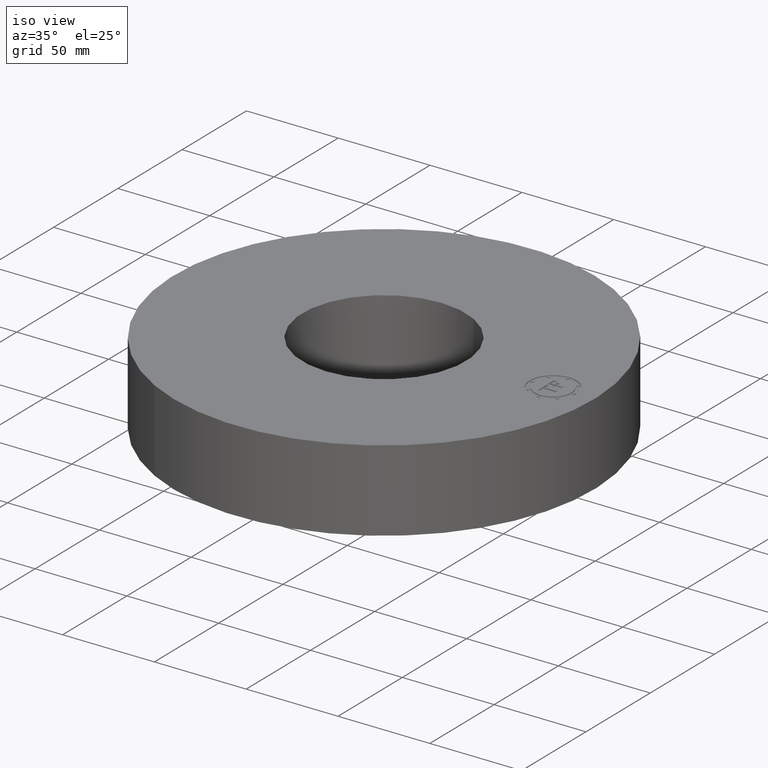
[diagram: clean part render]
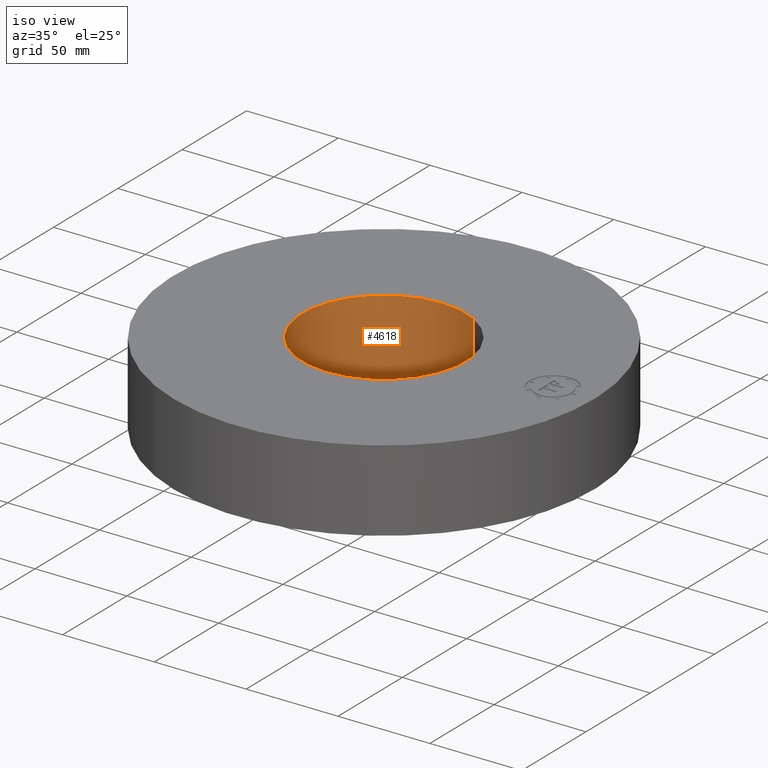
[diagram: same view with one face highlighted and labeled with its STEP entity id]
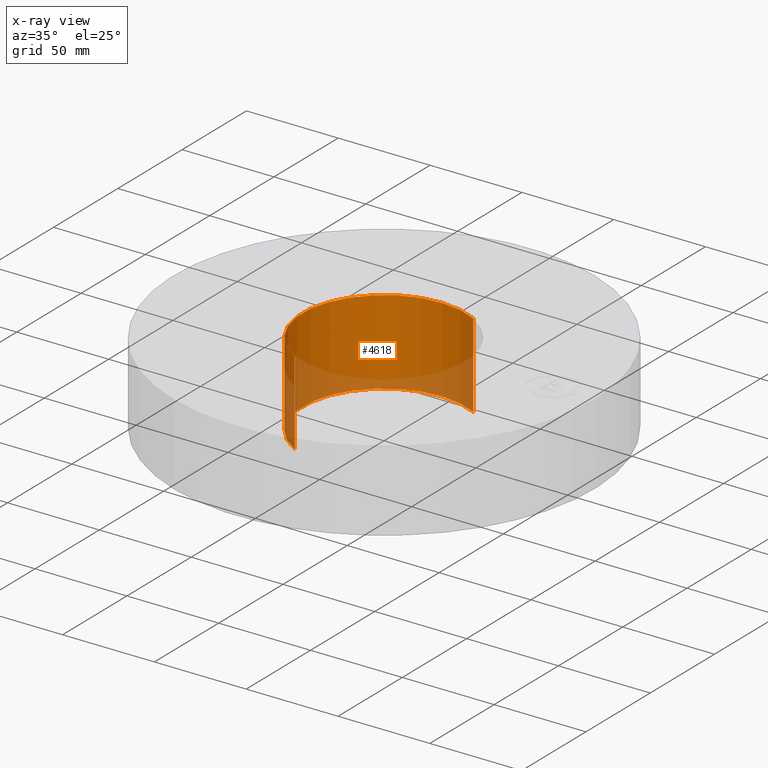
[diagram: x-ray of the same camera — body ghosted, the highlighted face saturated]
A machine part, iso view. The second image highlights one B-rep face of the part: STEP entity #4618.
The next image is the same camera in x-ray: the body ghosted, the highlighted face saturated — about 27% of this face is hidden behind the body in this view.
In plain terms, the highlighted cylindrical surface (partial cylindrical patch) has radius 44.45 mm, axis along (0, 0, -1).
Its self-contained STEP definition (entity closure, byte-faithful):
#4568=AXIS2_PLACEMENT_3D('Circle Axis2P3D',#4566,#4567,$) ;
#4579=AXIS2_PLACEMENT_3D('Cylinder Axis2P3D',#4576,#4577,#4578) ;
#4609=AXIS2_PLACEMENT_3D('Circle Axis2P3D',#4607,#4608,$) ;
#4561=CARTESIAN_POINT('Vertex',(0.838994692561,1.53576948331,-0.0625000000002)) ;
#4563=CARTESIAN_POINT('Vertex',(-0.838994692561,-1.53576948331,-0.0625000000002)) ;
#4566=CARTESIAN_POINT('Axis2P3D Location',(0.,0.,-0.0625000000003)) ;
#4576=CARTESIAN_POINT('Axis2P3D Location',(0.,0.,0.843750000003)) ;
#4585=CARTESIAN_POINT('Vertex',(0.838994692561,1.53576948331,1.75000000001)) ;
#4587=CARTESIAN_POINT('Vertex',(-0.838994692561,-1.53576948331,1.75000000001)) ;
#4590=CARTESIAN_POINT('Line Origine',(0.838994692561,1.53576948331,0.843750000003)) ;
#4595=CARTESIAN_POINT('Line Origine',(-0.838994692561,-1.53576948331,0.843750000003)) ;
#4607=CARTESIAN_POINT('Axis2P3D Location',(0.,0.,1.75000000001)) ;
#4567=DIRECTION('Axis2P3D Direction',(0.,0.,-0.0393700787402)) ;
#4577=DIRECTION('Axis2P3D Direction',(0.,0.,-0.0393700787402)) ;
#4578=DIRECTION('Axis2P3D XDirection',(-0.0188750212049,-0.0345504945626,0.)) ;
#4591=DIRECTION('Vector Direction',(0.,0.,-0.0393700787402)) ;
#4596=DIRECTION('Vector Direction',(0.,0.,-0.0393700787402)) ;
#4608=DIRECTION('Axis2P3D Direction',(0.,0.,-0.0393700787402)) ;
#4592=VECTOR('Line Direction',#4591,0.0393700787402) ;
#4597=VECTOR('Line Direction',#4596,0.0393700787402) ;
#4613=ORIENTED_EDGE('',*,*,#4611,.F.) ;
#4614=ORIENTED_EDGE('',*,*,#4599,.T.) ;
#4615=ORIENTED_EDGE('',*,*,#4570,.T.) ;
#4616=ORIENTED_EDGE('',*,*,#4594,.F.) ;
#4618=ADVANCED_FACE('PartBody',(#4617),#4580,.F.) ;
#4569=CIRCLE('generated circle',#4568,1.75000000001) ;
#4610=CIRCLE('generated circle',#4609,1.75000000001) ;
#4580=CYLINDRICAL_SURFACE('generated cylinder',#4579,1.75000000001) ;
#4570=EDGE_CURVE('',#4564,#4562,#4569,.T.) ;
#4594=EDGE_CURVE('',#4586,#4562,#4593,.T.) ;
#4599=EDGE_CURVE('',#4588,#4564,#4598,.T.) ;
#4611=EDGE_CURVE('',#4588,#4586,#4610,.T.) ;
#4612=EDGE_LOOP('',(#4613,#4614,#4615,#4616)) ;
#4617=FACE_OUTER_BOUND('',#4612,.T.) ;
#4593=LINE('Line',#4590,#4592) ;
#4598=LINE('Line',#4595,#4597) ;
#4562=VERTEX_POINT('',#4561) ;
#4564=VERTEX_POINT('',#4563) ;
#4586=VERTEX_POINT('',#4585) ;
#4588=VERTEX_POINT('',#4587) ;